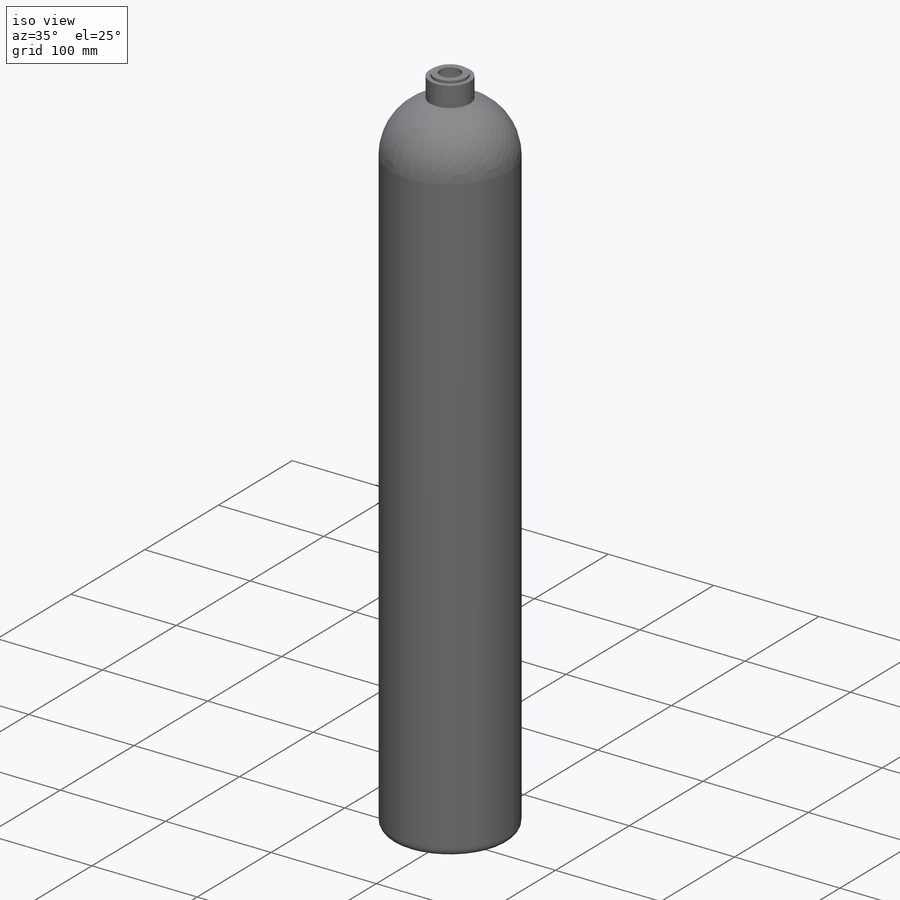
[diagram: iso view]
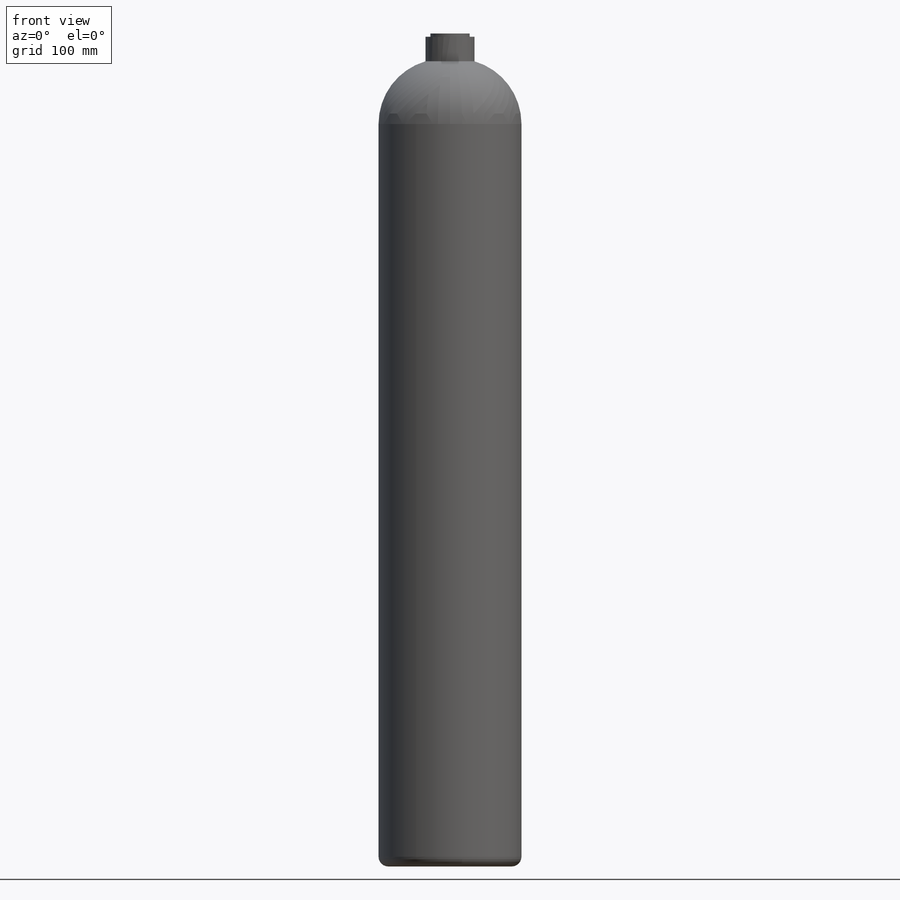
[diagram: front view]
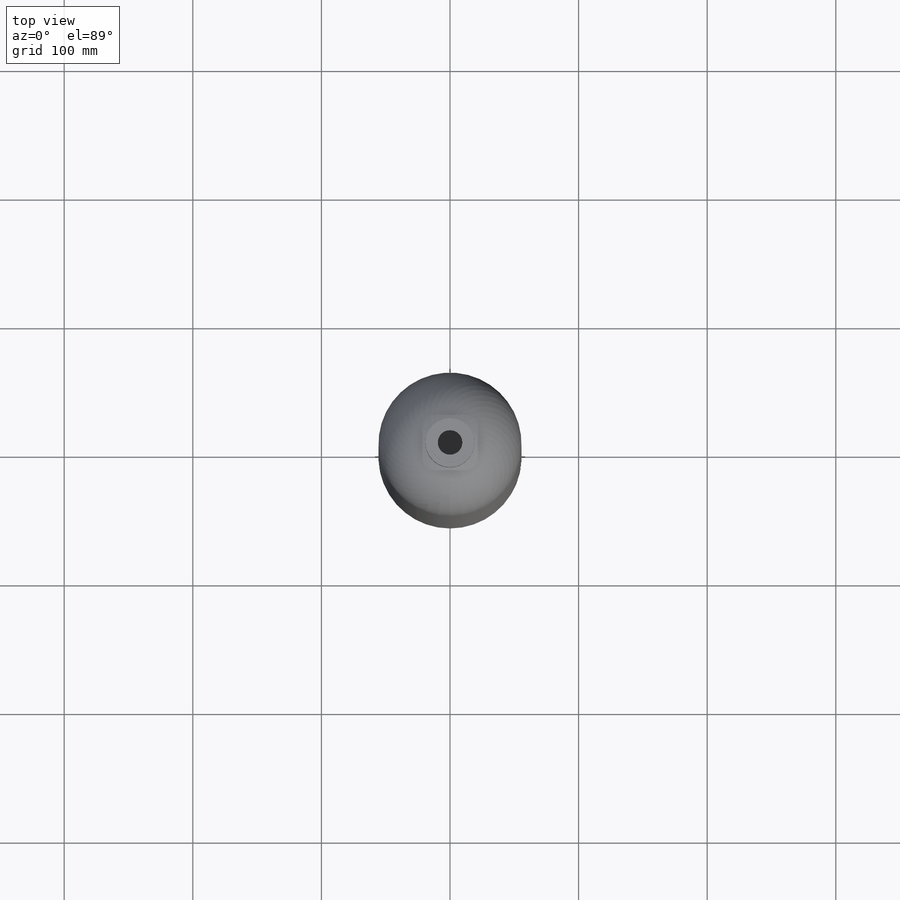
[diagram: top view]
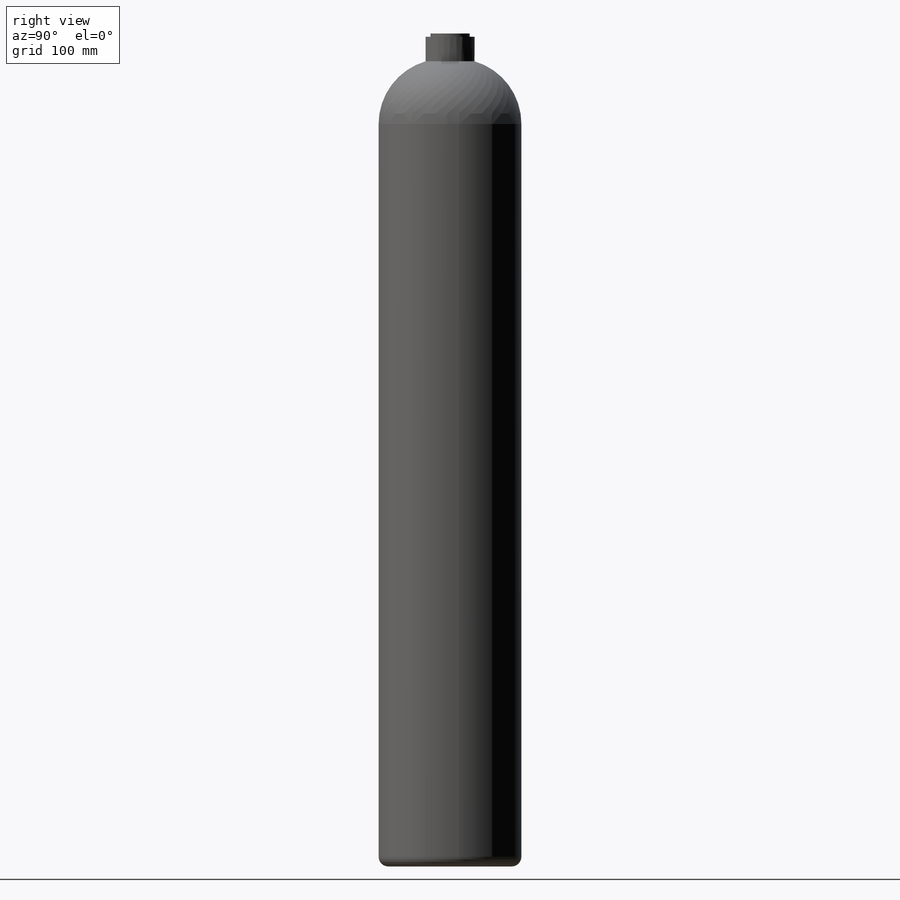
[diagram: right view]
SOLIDWORKS PART (.sldprt)
format: sldprt  version: not decoded by parser v0  size: 196,608 bytes
history: native  units: mm
features: sketch x4, extrude x4, fillet x2, material x1, shell x1 (+13 scaffold rows collapsed)
feature tree (25):
  scaffold x13  (default folders/planes/origin — collapsed)
  material  "Material <not specified>"
  sketch  "Sketch1"  dims[D1=133.35mm]
  extrude  "Boss-Extrude1"  Depth=414.02mm
  sketch  "Sketch2"  dims[D1=0.0mm]
  extrude  "Boss-Extrude2"  Depth=50.8mm
  sketch  "Sketch3"  dims[D1=38.1mm]
  extrude  "Boss-Extrude3"  Depth=19.05mm
  fillet  "Fillet1"  Radius=50.8mm
  fillet  "Fillet2"  Radius=7.62mm
  shell  "Shell2"  Thickness=3.81mm
  sketch  "Sketch4"  dims[D1=19.05mm]
  extrude  "Boss-Extrude4"  Depth=2.54mm
decode coverage: 11 of 11 modeling features carry decoded parameters
note: suppression state not decoded; provenance and decode notes live in map.json
